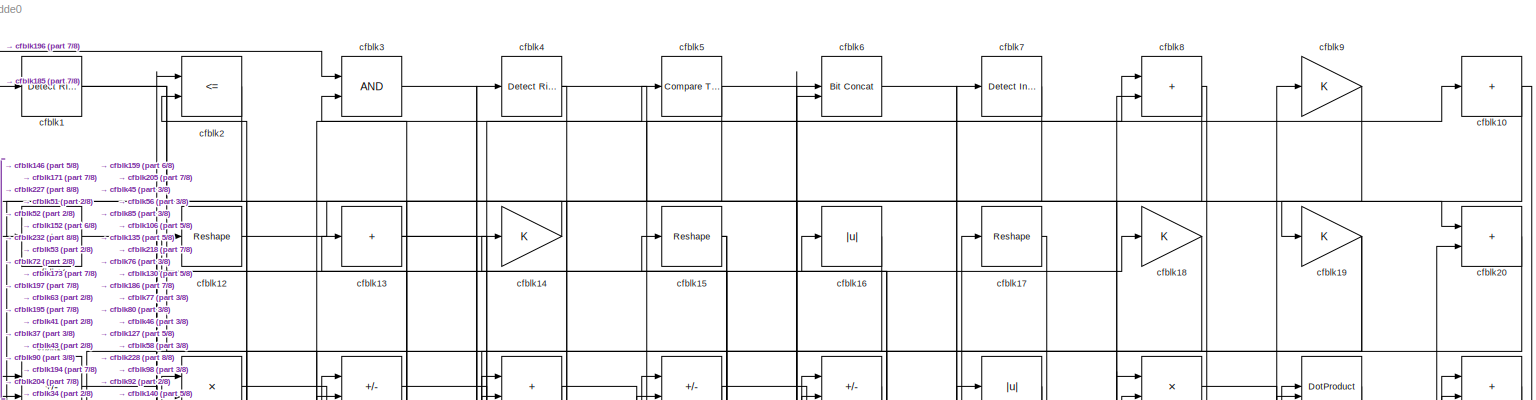
[diagram: root canvas - part 1/8, full width, top band]
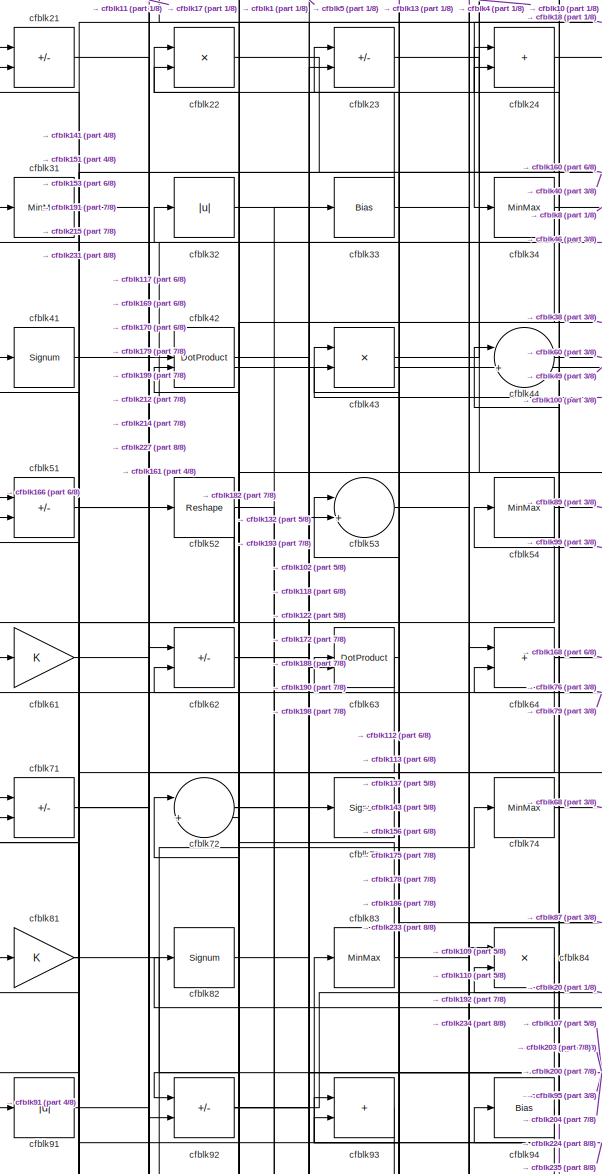
[diagram: root canvas - part 2/8, top left region]
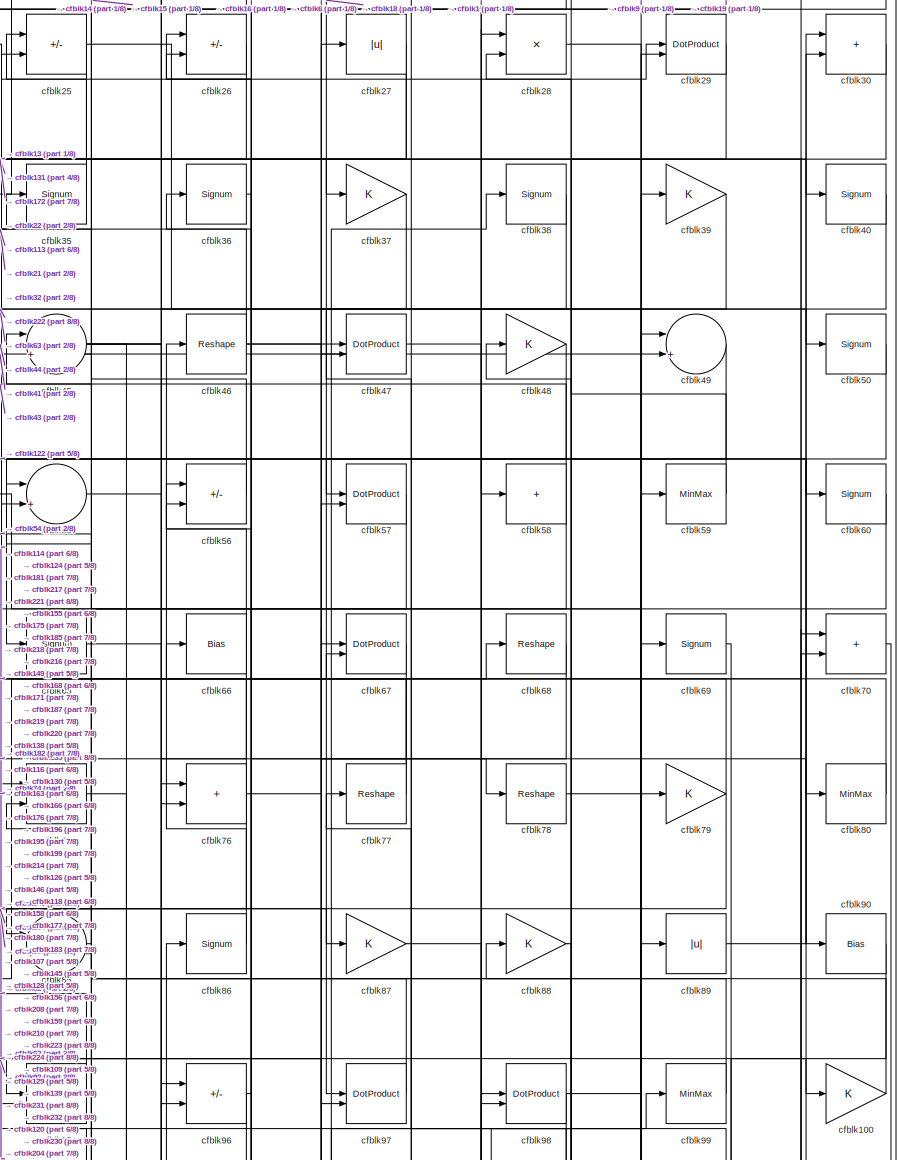
[diagram: root canvas - part 3/8, top right region]
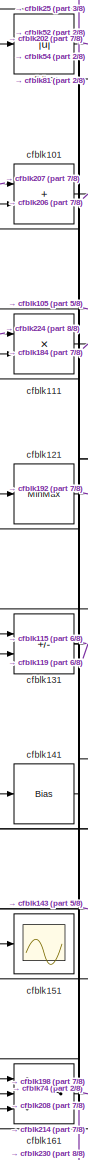
[diagram: root canvas - part 4/8, middle left region]
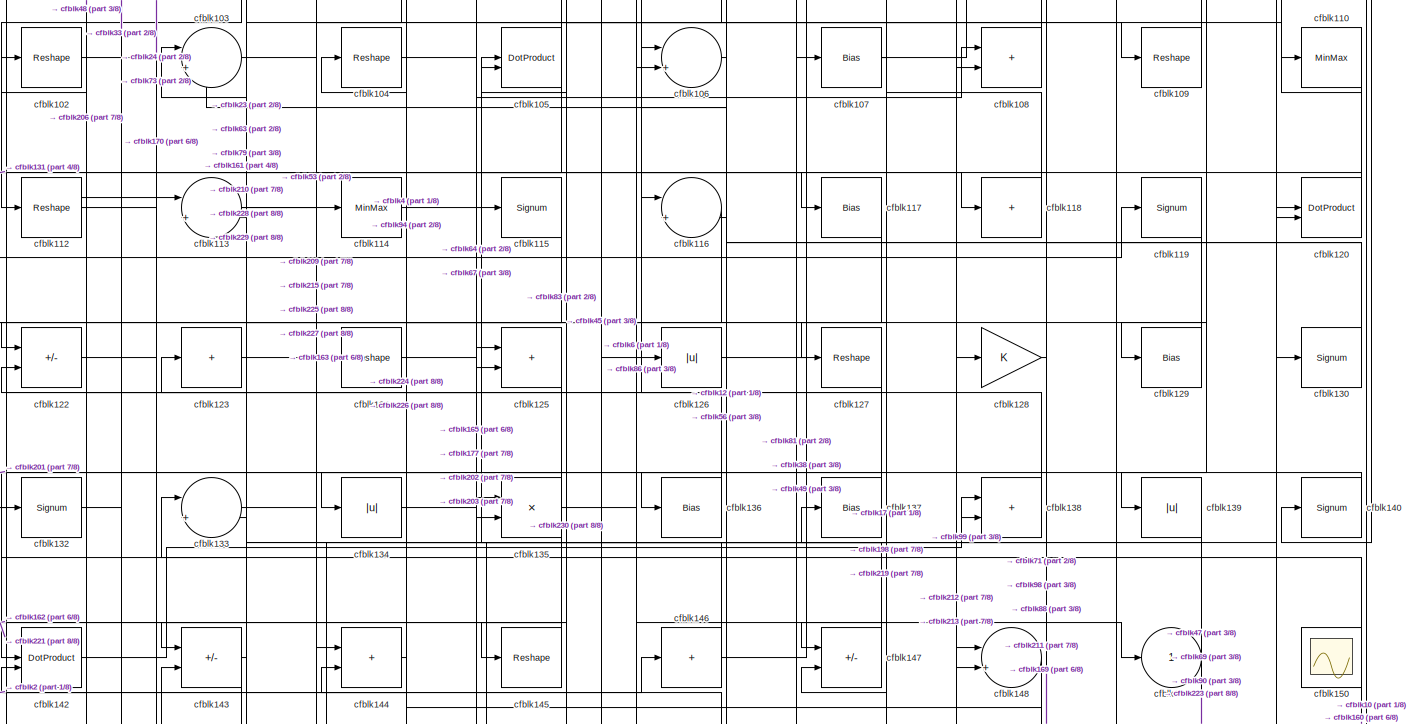
[diagram: root canvas - part 5/8, full width, middle band]
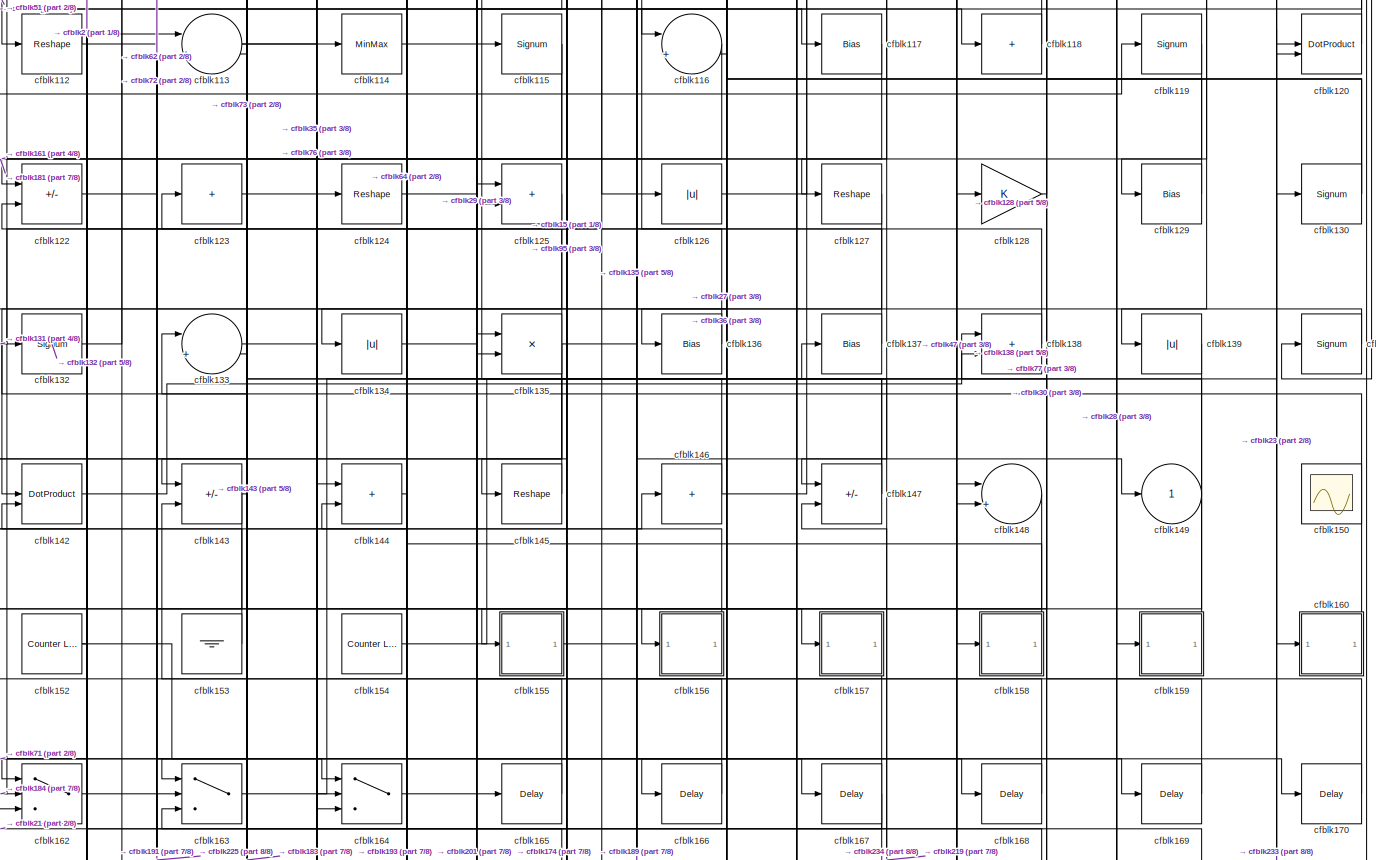
[diagram: root canvas - part 6/8, full width, middle band]
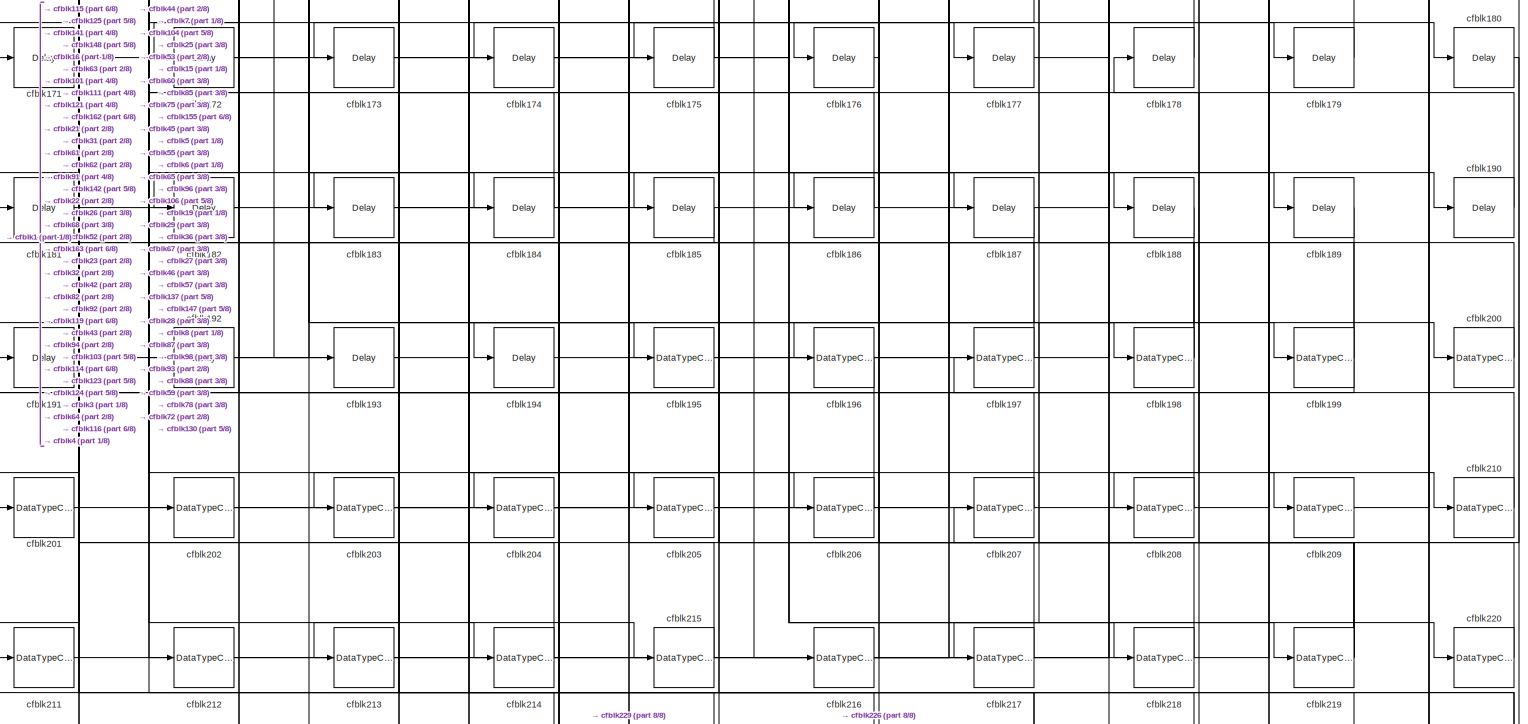
[diagram: root canvas - part 7/8, full width, bottom band]
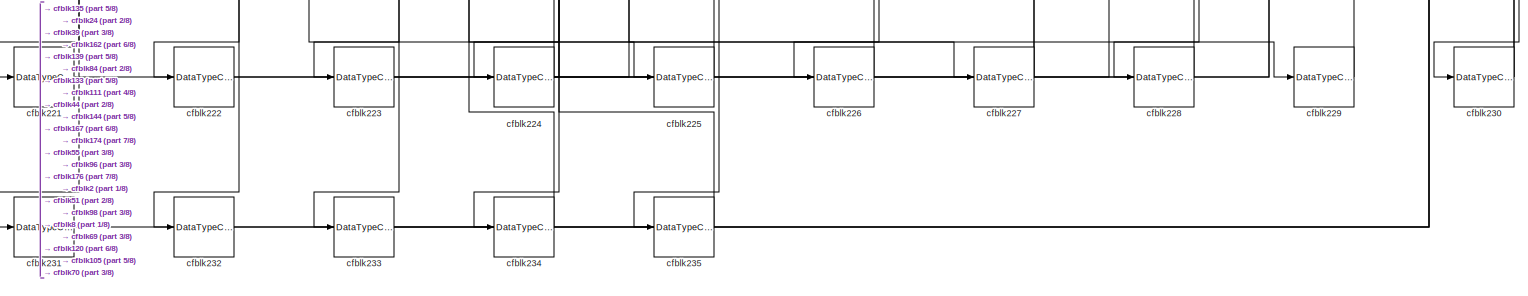
[diagram: root canvas - part 8/8, full width, bottom band]
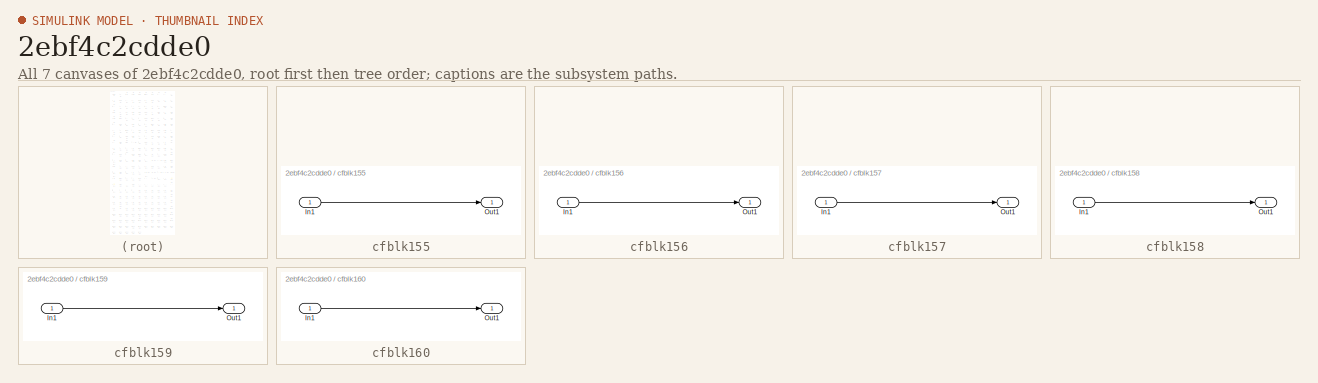
[diagram: thumbnail index - all 7 canvases of the model, root first then tree order]
MODEL slx_2ebf4c2cdde0
KIND model
CONFIG AbsTol = auto
CONFIG EnableMultiTasking = off
CONFIG FixedStep = auto
CONFIG MaxStep = auto
CONFIG MinStep = auto
CONFIG RelTol = 1e-3
CONFIG SampleTimeConstraint = Unconstrained
CONFIG SolverName = VariableStepAuto
CONFIG StartTime = 0.0
CONFIG StopTime = 10.0
BLOCK [Reference] cfblk1  REF=hdlsllib/Logic and Bit
Operations/Detect Rise
Positive
  SourceBlock = hdlsllib/Logic and Bit\nOperations/Detect Rise\nPositive
  SourceType = Detect Rise Positive
BLOCK [Sum] cfblk10
  IconShape = rectangular
  Inputs = +
BLOCK [Gain] cfblk100
BLOCK [Sum] cfblk101
  IconShape = rectangular
BLOCK [Reshape] cfblk102
BLOCK [Sum] cfblk103
  Inputs = |++
BLOCK [Reshape] cfblk104
BLOCK [DotProduct] cfblk105
  OutDataTypeStr = Inherit: Inherit via internal rule
BLOCK [Sum] cfblk106
  Inputs = |++
BLOCK [Bias] cfblk107
  Bias = 0.0
  SaturateOnIntegerOverflow = off
BLOCK [Sum] cfblk108
  IconShape = rectangular
BLOCK [Reshape] cfblk109
BLOCK [Sum] cfblk11
  IconShape = rectangular
  Inputs = +
BLOCK [MinMax] cfblk110
BLOCK [Product] cfblk111
  Inputs = */
  RndMeth = Zero
  SaturateOnIntegerOverflow = on
BLOCK [Reshape] cfblk112
BLOCK [Sum] cfblk113
  Inputs = |++
BLOCK [MinMax] cfblk114
BLOCK [Signum] cfblk115
BLOCK [Sum] cfblk116
  Inputs = |++
BLOCK [Bias] cfblk117
  Bias = 0.0
  SaturateOnIntegerOverflow = off
BLOCK [Sum] cfblk118
  IconShape = rectangular
  Inputs = +
BLOCK [Signum] cfblk119
BLOCK [Reshape] cfblk12
BLOCK [DotProduct] cfblk120
  OutDataTypeStr = Inherit: Inherit via internal rule
BLOCK [MinMax] cfblk121
BLOCK [Sum] cfblk122
  IconShape = rectangular
  Inputs = +-
BLOCK [Sum] cfblk123
  IconShape = rectangular
  Inputs = +
BLOCK [Reshape] cfblk124
BLOCK [Sum] cfblk125
  IconShape = rectangular
BLOCK [Abs] cfblk126
  SaturateOnIntegerOverflow = off
BLOCK [Reshape] cfblk127
BLOCK [Gain] cfblk128
BLOCK [Bias] cfblk129
  Bias = 0.0
  SaturateOnIntegerOverflow = off
BLOCK [Sum] cfblk13
  IconShape = rectangular
  Inputs = +
BLOCK [Signum] cfblk130
BLOCK [Sum] cfblk131
  IconShape = rectangular
  Inputs = +-
BLOCK [Signum] cfblk132
BLOCK [Sum] cfblk133
  Inputs = |++
BLOCK [Abs] cfblk134
  SaturateOnIntegerOverflow = off
BLOCK [Product] cfblk135
  Inputs = */
  RndMeth = Zero
  SaturateOnIntegerOverflow = on
BLOCK [Bias] cfblk136
  Bias = 0.0
  SaturateOnIntegerOverflow = off
BLOCK [Bias] cfblk137
  Bias = 0.0
  SaturateOnIntegerOverflow = off
BLOCK [Sum] cfblk138
  IconShape = rectangular
BLOCK [Abs] cfblk139
  SaturateOnIntegerOverflow = off
BLOCK [Gain] cfblk14
BLOCK [Signum] cfblk140
BLOCK [Bias] cfblk141
  Bias = 0.0
  SaturateOnIntegerOverflow = off
BLOCK [DotProduct] cfblk142
  OutDataTypeStr = Inherit: Inherit via internal rule
BLOCK [Sum] cfblk143
  IconShape = rectangular
  Inputs = +-
BLOCK [Sum] cfblk144
  IconShape = rectangular
BLOCK [Reshape] cfblk145
BLOCK [Sum] cfblk146
  IconShape = rectangular
  Inputs = +
BLOCK [Sum] cfblk147
  IconShape = rectangular
  Inputs = +-
BLOCK [Sum] cfblk148
  Inputs = |++
BLOCK [Outport] cfblk149
  VectorParamsAs1DForOutWhenUnconnected = off
BLOCK [Reshape] cfblk15
BLOCK [Scope] cfblk150
  Floating = on
  NumInputPorts = 1
  ScopeSpecificationString = Simulink.scopes.TimeScopeBlockCfg('CurrentConfiguration', extmgr.ConfigurationSet(extmgr.Configuration('Core','General UI',true,'FigureColor',[0.156862745098039 0.156862745098039 0.156862745098039]),extmgr.Configuration('Core','Source UI',true),extmgr.Configuration('Sources','WiredSimulink',true,'DataLoggingVariableName','ScopeData1','DataLoggingSaveFormat','StructureWithTime','DataLoggingLimitDat...<+2713ch>
BLOCK [Scope] cfblk151
  Floating = off
  NumInputPorts = 1
  ScopeSpecificationString = Simulink.scopes.TimeScopeBlockCfg('CurrentConfiguration', extmgr.ConfigurationSet(extmgr.Configuration('Core','General UI',true),extmgr.Configuration('Core','Source UI',true),extmgr.Configuration('Sources','WiredSimulink',true,'DataLoggingVariableName','ScopeData2','DataLoggingSaveFormat','Array','DataLoggingLimitDataPoints',true,'DataLoggingDecimation','1'),extmgr.Configuration('Visuals','Time Do...<+868ch>
BLOCK [Reference] cfblk152  REF=hdlsllib/Sources/Counter
Limited
  SourceBlock = hdlsllib/Sources/Counter\nLimited
  SourceType = Counter Limited
BLOCK [Ground] cfblk153
BLOCK [Reference] cfblk154  REF=hdlsllib/Sources/Counter
Limited
  SourceBlock = hdlsllib/Sources/Counter\nLimited
  SourceType = Counter Limited
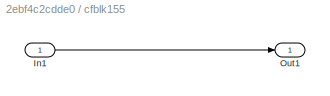
BLOCK [SubSystem] cfblk155
  LibrarySourceBlock = hdlsllib/Ports &\nSubsystems/Subsystem
BLOCK [Inport] cfblk155/In1
BLOCK [Outport] cfblk155/Out1
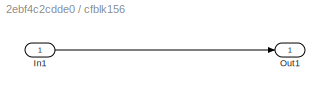
BLOCK [SubSystem] cfblk156
  LibrarySourceBlock = hdlsllib/Ports &\nSubsystems/Subsystem
BLOCK [Inport] cfblk156/In1
BLOCK [Outport] cfblk156/Out1
BLOCK [SubSystem] cfblk157
  LibrarySourceBlock = hdlsllib/Ports &\nSubsystems/Subsystem
BLOCK [Inport] cfblk157/In1
BLOCK [Outport] cfblk157/Out1
BLOCK [SubSystem] cfblk158
  LibrarySourceBlock = hdlsllib/Ports &\nSubsystems/Subsystem
BLOCK [Inport] cfblk158/In1
BLOCK [Outport] cfblk158/Out1
BLOCK [SubSystem] cfblk159
  LibrarySourceBlock = hdlsllib/Ports &\nSubsystems/Subsystem
BLOCK [Inport] cfblk159/In1
BLOCK [Outport] cfblk159/Out1
BLOCK [Abs] cfblk16
  SaturateOnIntegerOverflow = off
BLOCK [SubSystem] cfblk160
  LibrarySourceBlock = hdlsllib/Ports &\nSubsystems/Subsystem
BLOCK [Inport] cfblk160/In1
BLOCK [Outport] cfblk160/Out1
BLOCK [Switch] cfblk161
  InputSameDT = off
  SaturateOnIntegerOverflow = off
BLOCK [Switch] cfblk162
  InputSameDT = off
  SaturateOnIntegerOverflow = off
BLOCK [Switch] cfblk163
  InputSameDT = off
  SaturateOnIntegerOverflow = off
BLOCK [Switch] cfblk164
  InputSameDT = off
  SaturateOnIntegerOverflow = off
BLOCK [Delay] cfblk165
  InputPortMap = u0
  SampleTime = 1
BLOCK [Delay] cfblk166
  InputPortMap = u0
  SampleTime = 1
BLOCK [Delay] cfblk167
  InputPortMap = u0
  SampleTime = 1
BLOCK [Delay] cfblk168
  InputPortMap = u0
  SampleTime = 1
BLOCK [Delay] cfblk169
  InputPortMap = u0
  SampleTime = 1
BLOCK [Reshape] cfblk17
BLOCK [Delay] cfblk170
  InputPortMap = u0
  SampleTime = 1
BLOCK [Delay] cfblk171
  InputPortMap = u0
  SampleTime = 1
BLOCK [Delay] cfblk172
  InputPortMap = u0
  SampleTime = 1
BLOCK [Delay] cfblk173
  InputPortMap = u0
  SampleTime = 1
BLOCK [Delay] cfblk174
  InputPortMap = u0
  SampleTime = 1
BLOCK [Delay] cfblk175
  InputPortMap = u0
  SampleTime = 1
BLOCK [Delay] cfblk176
  InputPortMap = u0
  SampleTime = 1
BLOCK [Delay] cfblk177
  InputPortMap = u0
  SampleTime = 1
BLOCK [Delay] cfblk178
  InputPortMap = u0
  SampleTime = 1
BLOCK [Delay] cfblk179
  InputPortMap = u0
  SampleTime = 1
BLOCK [Gain] cfblk18
BLOCK [Delay] cfblk180
  InputPortMap = u0
  SampleTime = 1
BLOCK [Delay] cfblk181
  InputPortMap = u0
  SampleTime = 1
BLOCK [Delay] cfblk182
  InputPortMap = u0
  SampleTime = 1
BLOCK [Delay] cfblk183
  InputPortMap = u0
  SampleTime = 1
BLOCK [Delay] cfblk184
  InputPortMap = u0
  SampleTime = 1
BLOCK [Delay] cfblk185
  InputPortMap = u0
  SampleTime = 1
BLOCK [Delay] cfblk186
  InputPortMap = u0
  SampleTime = 1
BLOCK [Delay] cfblk187
  InputPortMap = u0
  SampleTime = 1
BLOCK [Delay] cfblk188
  InputPortMap = u0
  SampleTime = 1
BLOCK [Delay] cfblk189
  InputPortMap = u0
  SampleTime = 1
BLOCK [Gain] cfblk19
BLOCK [Delay] cfblk190
  InputPortMap = u0
  SampleTime = 1
BLOCK [Delay] cfblk191
  InputPortMap = u0
  SampleTime = 1
BLOCK [Delay] cfblk192
  InputPortMap = u0
  SampleTime = 1
BLOCK [Delay] cfblk193
  InputPortMap = u0
  SampleTime = 1
BLOCK [Delay] cfblk194
  InputPortMap = u0
  SampleTime = 1
BLOCK [DataTypeConversion] cfblk195
  OutDataTypeStr = uint8
  RndMeth = Floor
  SaturateOnIntegerOverflow = off
BLOCK [DataTypeConversion] cfblk196
  OutDataTypeStr = uint8
  RndMeth = Floor
  SaturateOnIntegerOverflow = off
BLOCK [DataTypeConversion] cfblk197
  OutDataTypeStr = uint8
  RndMeth = Floor
  SaturateOnIntegerOverflow = off
BLOCK [DataTypeConversion] cfblk198
  RndMeth = Floor
  SaturateOnIntegerOverflow = off
BLOCK [DataTypeConversion] cfblk199
  OutDataTypeStr = uint8
  RndMeth = Floor
  SaturateOnIntegerOverflow = off
BLOCK [RelationalOperator] cfblk2
  InputSameDT = off
  Operator = <=
  OutDataTypeStr = boolean
BLOCK [Sum] cfblk20
  IconShape = rectangular
BLOCK [DataTypeConversion] cfblk200
  OutDataTypeStr = uint8
  RndMeth = Floor
  SaturateOnIntegerOverflow = off
BLOCK [DataTypeConversion] cfblk201
  OutDataTypeStr = uint8
  RndMeth = Floor
  SaturateOnIntegerOverflow = off
BLOCK [DataTypeConversion] cfblk202
  OutDataTypeStr = uint8
  RndMeth = Floor
  SaturateOnIntegerOverflow = off
BLOCK [DataTypeConversion] cfblk203
  OutDataTypeStr = uint8
  RndMeth = Floor
  SaturateOnIntegerOverflow = off
BLOCK [DataTypeConversion] cfblk204
  RndMeth = Floor
  SaturateOnIntegerOverflow = off
BLOCK [DataTypeConversion] cfblk205
  OutDataTypeStr = uint8
  RndMeth = Floor
  SaturateOnIntegerOverflow = off
BLOCK [DataTypeConversion] cfblk206
  OutDataTypeStr = uint8
  RndMeth = Floor
  SaturateOnIntegerOverflow = off
BLOCK [DataTypeConversion] cfblk207
  OutDataTypeStr = uint8
  RndMeth = Floor
  SaturateOnIntegerOverflow = off
BLOCK [DataTypeConversion] cfblk208
  OutDataTypeStr = uint8
  RndMeth = Floor
  SaturateOnIntegerOverflow = off
BLOCK [DataTypeConversion] cfblk209
  OutDataTypeStr = uint8
  RndMeth = Floor
  SaturateOnIntegerOverflow = off
BLOCK [Sum] cfblk21
  IconShape = rectangular
  Inputs = +-
BLOCK [DataTypeConversion] cfblk210
  OutDataTypeStr = uint8
  RndMeth = Floor
  SaturateOnIntegerOverflow = off
BLOCK [DataTypeConversion] cfblk211
  OutDataTypeStr = uint8
  RndMeth = Floor
  SaturateOnIntegerOverflow = off
BLOCK [DataTypeConversion] cfblk212
  OutDataTypeStr = uint8
  RndMeth = Floor
  SaturateOnIntegerOverflow = off
BLOCK [DataTypeConversion] cfblk213
  OutDataTypeStr = uint8
  RndMeth = Floor
  SaturateOnIntegerOverflow = off
BLOCK [DataTypeConversion] cfblk214
  RndMeth = Floor
  SaturateOnIntegerOverflow = off
BLOCK [DataTypeConversion] cfblk215
  OutDataTypeStr = uint8
  RndMeth = Floor
  SaturateOnIntegerOverflow = off
BLOCK [DataTypeConversion] cfblk216
  RndMeth = Floor
  SaturateOnIntegerOverflow = off
BLOCK [DataTypeConversion] cfblk217
  OutDataTypeStr = uint8
  RndMeth = Floor
  SaturateOnIntegerOverflow = off
BLOCK [DataTypeConversion] cfblk218
  OutDataTypeStr = uint8
  RndMeth = Floor
  SaturateOnIntegerOverflow = off
BLOCK [DataTypeConversion] cfblk219
  RndMeth = Floor
  SaturateOnIntegerOverflow = off
BLOCK [Product] cfblk22
  Inputs = */
  RndMeth = Zero
  SaturateOnIntegerOverflow = on
BLOCK [DataTypeConversion] cfblk220
  OutDataTypeStr = uint8
  RndMeth = Floor
  SaturateOnIntegerOverflow = off
BLOCK [DataTypeConversion] cfblk221
  OutDataTypeStr = uint8
  RndMeth = Floor
  SaturateOnIntegerOverflow = off
BLOCK [DataTypeConversion] cfblk222
  OutDataTypeStr = uint8
  RndMeth = Floor
  SaturateOnIntegerOverflow = off
BLOCK [DataTypeConversion] cfblk223
  OutDataTypeStr = uint8
  RndMeth = Floor
  SaturateOnIntegerOverflow = off
BLOCK [DataTypeConversion] cfblk224
  RndMeth = Floor
  SaturateOnIntegerOverflow = off
BLOCK [DataTypeConversion] cfblk225
  OutDataTypeStr = uint8
  RndMeth = Floor
  SaturateOnIntegerOverflow = off
BLOCK [DataTypeConversion] cfblk226
  OutDataTypeStr = uint8
  RndMeth = Floor
  SaturateOnIntegerOverflow = off
BLOCK [DataTypeConversion] cfblk227
  RndMeth = Floor
  SaturateOnIntegerOverflow = off
BLOCK [DataTypeConversion] cfblk228
  OutDataTypeStr = uint8
  RndMeth = Floor
  SaturateOnIntegerOverflow = off
BLOCK [DataTypeConversion] cfblk229
  OutDataTypeStr = uint8
  RndMeth = Floor
  SaturateOnIntegerOverflow = off
BLOCK [Sum] cfblk23
  IconShape = rectangular
  Inputs = +-
BLOCK [DataTypeConversion] cfblk230
  RndMeth = Floor
  SaturateOnIntegerOverflow = off
BLOCK [DataTypeConversion] cfblk231
  OutDataTypeStr = uint8
  RndMeth = Floor
  SaturateOnIntegerOverflow = off
BLOCK [DataTypeConversion] cfblk232
  OutDataTypeStr = uint8
  RndMeth = Floor
  SaturateOnIntegerOverflow = off
BLOCK [DataTypeConversion] cfblk233
  OutDataTypeStr = uint8
  RndMeth = Floor
  SaturateOnIntegerOverflow = off
BLOCK [DataTypeConversion] cfblk234
  OutDataTypeStr = uint8
  RndMeth = Floor
  SaturateOnIntegerOverflow = off
BLOCK [DataTypeConversion] cfblk235
  OutDataTypeStr = uint8
  RndMeth = Floor
  SaturateOnIntegerOverflow = off
BLOCK [Sum] cfblk24
  IconShape = rectangular
BLOCK [Sum] cfblk25
  IconShape = rectangular
  Inputs = +-
BLOCK [Sum] cfblk26
  IconShape = rectangular
  Inputs = +-
BLOCK [Abs] cfblk27
  SaturateOnIntegerOverflow = off
BLOCK [Product] cfblk28
  Inputs = */
  RndMeth = Zero
  SaturateOnIntegerOverflow = on
BLOCK [DotProduct] cfblk29
  OutDataTypeStr = Inherit: Inherit via internal rule
BLOCK [Logic] cfblk3
  AllPortsSameDT = off
  OutDataTypeStr = boolean
BLOCK [Sum] cfblk30
  IconShape = rectangular
BLOCK [MinMax] cfblk31
BLOCK [Abs] cfblk32
  SaturateOnIntegerOverflow = off
BLOCK [Bias] cfblk33
  Bias = 0.0
  SaturateOnIntegerOverflow = off
BLOCK [MinMax] cfblk34
BLOCK [Signum] cfblk35
BLOCK [Signum] cfblk36
BLOCK [Gain] cfblk37
BLOCK [Signum] cfblk38
BLOCK [Gain] cfblk39
BLOCK [Reference] cfblk4  REF=hdlsllib/Logic and Bit
Operations/Detect Rise
Nonnegative
  SourceBlock = hdlsllib/Logic and Bit\nOperations/Detect Rise\nNonnegative
  SourceType = Detect Rise Nonnegative
BLOCK [Signum] cfblk40
BLOCK [Signum] cfblk41
BLOCK [DotProduct] cfblk42
  OutDataTypeStr = Inherit: Inherit via internal rule
BLOCK [Product] cfblk43
  Inputs = */
  RndMeth = Zero
  SaturateOnIntegerOverflow = on
BLOCK [Sum] cfblk44
  Inputs = |++
BLOCK [Sum] cfblk45
  Inputs = |++
BLOCK [Reshape] cfblk46
BLOCK [DotProduct] cfblk47
  OutDataTypeStr = Inherit: Inherit via internal rule
BLOCK [Gain] cfblk48
BLOCK [Sum] cfblk49
  Inputs = |++
BLOCK [Reference] cfblk5  REF=hdlsllib/Logic and Bit
Operations/Compare
To Constant
  SourceBlock = hdlsllib/Logic and Bit\nOperations/Compare\nTo Constant
  SourceType = Compare To Constant
BLOCK [Signum] cfblk50
BLOCK [Sum] cfblk51
  IconShape = rectangular
  Inputs = +-
BLOCK [Reshape] cfblk52
BLOCK [Sum] cfblk53
  Inputs = |++
BLOCK [MinMax] cfblk54
BLOCK [Sum] cfblk55
  Inputs = |++
BLOCK [Sum] cfblk56
  IconShape = rectangular
  Inputs = +-
BLOCK [DotProduct] cfblk57
  OutDataTypeStr = Inherit: Inherit via internal rule
BLOCK [Sum] cfblk58
  IconShape = rectangular
  Inputs = +
BLOCK [MinMax] cfblk59
BLOCK [Reference] cfblk6  REF=hdlsllib/Logic and Bit
Operations/Bit Concat
  SourceBlock = hdlsllib/Logic and Bit\nOperations/Bit Concat
  SourceType = Bit Concat
BLOCK [Signum] cfblk60
BLOCK [Gain] cfblk61
BLOCK [Sum] cfblk62
  IconShape = rectangular
  Inputs = +-
BLOCK [DotProduct] cfblk63
  OutDataTypeStr = Inherit: Inherit via internal rule
BLOCK [Sum] cfblk64
  IconShape = rectangular
BLOCK [Signum] cfblk65
BLOCK [Bias] cfblk66
  Bias = 0.0
  SaturateOnIntegerOverflow = off
BLOCK [DotProduct] cfblk67
  OutDataTypeStr = Inherit: Inherit via internal rule
BLOCK [Reshape] cfblk68
BLOCK [Signum] cfblk69
BLOCK [Reference] cfblk7  REF=simulink/Logic and Bit
Operations/Detect
Increase
  LibrarySourceBlock = hdlsllib/Logic and Bit\nOperations/Detect\nIncrease
  SourceBlock = simulink/Logic and Bit\nOperations/Detect\nIncrease
  SourceType = Detect Increase
BLOCK [Sum] cfblk70
  IconShape = rectangular
BLOCK [Sum] cfblk71
  IconShape = rectangular
  Inputs = +-
BLOCK [Sum] cfblk72
  Inputs = |++
BLOCK [Signum] cfblk73
BLOCK [MinMax] cfblk74
BLOCK [Sum] cfblk75
  IconShape = rectangular
  Inputs = +-
BLOCK [Sum] cfblk76
  IconShape = rectangular
BLOCK [Reshape] cfblk77
BLOCK [Reshape] cfblk78
BLOCK [Gain] cfblk79
BLOCK [Sum] cfblk8
  IconShape = rectangular
BLOCK [MinMax] cfblk80
BLOCK [Gain] cfblk81
BLOCK [Signum] cfblk82
BLOCK [MinMax] cfblk83
BLOCK [Product] cfblk84
  Inputs = */
  RndMeth = Zero
  SaturateOnIntegerOverflow = on
BLOCK [Sum] cfblk85
  Inputs = |++
BLOCK [Signum] cfblk86
BLOCK [Gain] cfblk87
BLOCK [Gain] cfblk88
BLOCK [Abs] cfblk89
  SaturateOnIntegerOverflow = off
BLOCK [Gain] cfblk9
BLOCK [Bias] cfblk90
  Bias = 0.0
  SaturateOnIntegerOverflow = off
BLOCK [Abs] cfblk91
  SaturateOnIntegerOverflow = off
BLOCK [Sum] cfblk92
  IconShape = rectangular
  Inputs = +-
BLOCK [Sum] cfblk93
  IconShape = rectangular
BLOCK [Bias] cfblk94
  Bias = 0.0
  SaturateOnIntegerOverflow = off
BLOCK [DotProduct] cfblk95
  OutDataTypeStr = Inherit: Inherit via internal rule
BLOCK [Sum] cfblk96
  IconShape = rectangular
  Inputs = +-
BLOCK [DotProduct] cfblk97
  OutDataTypeStr = Inherit: Inherit via internal rule
BLOCK [DotProduct] cfblk98
  OutDataTypeStr = Inherit: Inherit via internal rule
BLOCK [MinMax] cfblk99
LINE cfblk100:1 -> cfblk43:1
LINE cfblk101:1 -> cfblk206:1
LINE cfblk102:1 -> cfblk73:1
LINE cfblk103:1 -> cfblk215:1
LINE cfblk104:1 -> cfblk177:1
NET cfblk105:1 -> cfblk131:2, cfblk83:1
LINE cfblk106:1 -> cfblk136:1
NET cfblk107:1 -> cfblk147:1, cfblk99:1
LINE cfblk108:1 -> cfblk71:1
LINE cfblk109:1 -> cfblk47:1
NET cfblk10:1 -> cfblk140:1, cfblk19:1
LINE cfblk110:1 -> cfblk135:2
LINE cfblk111:1 -> cfblk184:1
NET cfblk112:1 -> cfblk113:1, cfblk164:3
NET cfblk113:1 -> cfblk167:1, cfblk35:1
LINE cfblk114:1 -> cfblk29:1
NET cfblk115:1 -> cfblk161:1, cfblk181:1
LINE cfblk116:1 -> cfblk174:1
LINE cfblk117:1 -> cfblk162:1
LINE cfblk118:1 -> cfblk77:1
LINE cfblk119:1 -> cfblk183:1
LINE cfblk11:1 -> cfblk52:1
LINE cfblk120:1 -> cfblk30:2
LINE cfblk121:1 -> cfblk192:1
LINE cfblk122:1 -> cfblk24:1
LINE cfblk123:1 -> cfblk209:1
LINE cfblk124:1 -> cfblk67:2
LINE cfblk125:1 -> cfblk201:1
LINE cfblk126:1 -> cfblk49:1
LINE cfblk127:1 -> cfblk142:1
LINE cfblk128:1 -> cfblk88:1
LINE cfblk129:1 -> cfblk48:1
LINE cfblk12:1 -> cfblk20:1
NET cfblk130:1 -> cfblk103:2, cfblk12:1, cfblk56:1
NET cfblk131:1 -> cfblk115:1, cfblk119:1
LINE cfblk132:1 -> cfblk33:1
LINE cfblk133:1 -> cfblk227:1
LINE cfblk134:1 -> cfblk108:1
NET cfblk135:1 -> cfblk102:1, cfblk162:3, cfblk221:1, cfblk6:2
LINE cfblk136:1 -> cfblk104:1
LINE cfblk137:1 -> cfblk63:1
LINE cfblk138:1 -> cfblk86:1
LINE cfblk139:1 -> cfblk223:1
NET cfblk13:1 -> cfblk37:1, cfblk90:1
LINE cfblk140:1 -> cfblk134:1
LINE cfblk141:1 -> cfblk81:1
LINE cfblk142:1 -> cfblk138:1
NET cfblk143:1 -> cfblk161:3, cfblk23:1
LINE cfblk144:1 -> cfblk224:1
LINE cfblk145:1 -> cfblk103:1
NET cfblk146:1 -> cfblk38:1, cfblk94:1
NET cfblk147:1 -> cfblk105:1, cfblk122:2
LINE cfblk148:1 -> cfblk211:1
LINE cfblk14:1 -> cfblk11:1
NET cfblk152:1 -> cfblk164:1, cfblk2:2
LINE cfblk153:1 -> cfblk71:2
LINE cfblk154:1 -> cfblk120:2
LINE cfblk155/In1:1 -> cfblk155/Out1:1
LINE cfblk155:1 -> cfblk189:1
LINE cfblk156/In1:1 -> cfblk156/Out1:1
LINE cfblk156:1 -> cfblk93:1
LINE cfblk157/In1:1 -> cfblk157/Out1:1
LINE cfblk157:1 -> cfblk21:1
LINE cfblk158/In1:1 -> cfblk158/Out1:1
LINE cfblk158:1 -> cfblk64:2
LINE cfblk159/In1:1 -> cfblk159/Out1:1
LINE cfblk159:1 -> cfblk15:1
NET cfblk15:1 -> cfblk205:1, cfblk45:2
LINE cfblk160/In1:1 -> cfblk160/Out1:1
LINE cfblk160:1 -> cfblk132:1
LINE cfblk161:1 -> cfblk74:1
LINE cfblk162:1 -> cfblk225:1
LINE cfblk163:1 -> cfblk128:1
LINE cfblk164:1 -> cfblk165:1
LINE cfblk165:1 -> cfblk135:1
LINE cfblk166:1 -> cfblk51:1
LINE cfblk167:1 -> cfblk234:1
LINE cfblk168:1 -> cfblk76:1
LINE cfblk169:1 -> cfblk138:2
LINE cfblk16:1 -> cfblk171:1
LINE cfblk170:1 -> cfblk143:2
LINE cfblk171:1 -> cfblk96:1
LINE cfblk172:1 -> cfblk23:2
LINE cfblk173:1 -> cfblk6:1
LINE cfblk174:1 -> cfblk229:1
LINE cfblk175:1 -> cfblk53:1
LINE cfblk176:1 -> cfblk226:1
LINE cfblk177:1 -> cfblk98:2
LINE cfblk178:1 -> cfblk93:2
LINE cfblk179:1 -> cfblk72:1
LINE cfblk17:1 -> cfblk127:1
LINE cfblk180:1 -> cfblk207:1
LINE cfblk181:1 -> cfblk25:2
LINE cfblk182:1 -> cfblk22:2
LINE cfblk183:1 -> cfblk28:1
LINE cfblk184:1 -> cfblk162:2
LINE cfblk185:1 -> cfblk1:1
LINE cfblk186:1 -> cfblk43:2
LINE cfblk187:1 -> cfblk213:1
LINE cfblk188:1 -> cfblk217:1
LINE cfblk189:1 -> cfblk197:1
LINE cfblk18:1 -> cfblk34:1
LINE cfblk190:1 -> cfblk62:1
LINE cfblk191:1 -> cfblk163:2
LINE cfblk192:1 -> cfblk64:1
LINE cfblk193:1 -> cfblk163:3
LINE cfblk194:1 -> cfblk8:2
LINE cfblk195:1 -> cfblk27:1
LINE cfblk196:1 -> cfblk3:1
LINE cfblk197:1 -> cfblk3:2
NET cfblk198:1 -> cfblk121:1, cfblk137:1
LINE cfblk199:1 -> cfblk42:1
NET cfblk19:1 -> cfblk186:1, cfblk85:2
NET cfblk1:1 -> cfblk53:2, cfblk58:1
LINE cfblk200:1 -> cfblk42:2
LINE cfblk201:1 -> cfblk114:1
LINE cfblk202:1 -> cfblk125:1
LINE cfblk203:1 -> cfblk125:2
NET cfblk204:1 -> cfblk29:2, cfblk44:1
LINE cfblk205:1 -> cfblk7:1
LINE cfblk206:1 -> cfblk142:2
LINE cfblk207:1 -> cfblk101:1
LINE cfblk208:1 -> cfblk101:2
LINE cfblk209:1 -> cfblk130:1
LINE cfblk20:1 -> cfblk72:2
LINE cfblk210:1 -> cfblk123:1
LINE cfblk211:1 -> cfblk124:1
LINE cfblk212:1 -> cfblk148:1
LINE cfblk213:1 -> cfblk148:2
NET cfblk214:1 -> cfblk141:1, cfblk67:1
LINE cfblk215:1 -> cfblk31:1
NET cfblk216:1 -> cfblk36:1, cfblk57:2, cfblk59:1
LINE cfblk217:1 -> cfblk75:1
LINE cfblk218:1 -> cfblk75:2
NET cfblk219:1 -> cfblk106:1, cfblk116:2, cfblk147:2, cfblk178:1
LINE cfblk21:1 -> cfblk212:1
LINE cfblk220:1 -> cfblk55:1
LINE cfblk221:1 -> cfblk55:2
LINE cfblk222:1 -> cfblk98:1
LINE cfblk223:1 -> cfblk39:1
NET cfblk224:1 -> cfblk111:1, cfblk44:2, cfblk69:1
LINE cfblk225:1 -> cfblk144:1
LINE cfblk226:1 -> cfblk144:2
NET cfblk227:1 -> cfblk2:1, cfblk51:2
LINE cfblk228:1 -> cfblk133:1
LINE cfblk229:1 -> cfblk133:2
LINE cfblk22:1 -> cfblk40:1
NET cfblk230:1 -> cfblk105:2, cfblk111:2
LINE cfblk231:1 -> cfblk70:1
LINE cfblk232:1 -> cfblk70:2
LINE cfblk233:1 -> cfblk120:1
LINE cfblk234:1 -> cfblk84:1
LINE cfblk235:1 -> cfblk84:2
LINE cfblk23:1 -> cfblk160:1
NET cfblk24:1 -> cfblk100:1, cfblk231:1
NET cfblk25:1 -> cfblk131:1, cfblk79:1
LINE cfblk26:1 -> cfblk172:1
NET cfblk27:1 -> cfblk163:1, cfblk166:1
LINE cfblk28:1 -> cfblk159:1
LINE cfblk29:1 -> cfblk176:1
LINE cfblk2:1 -> cfblk146:1
LINE cfblk30:1 -> cfblk156:1
LINE cfblk31:1 -> cfblk214:1
LINE cfblk32:1 -> cfblk188:1
NET cfblk33:1 -> cfblk109:1, cfblk22:1
NET cfblk34:1 -> cfblk8:1, cfblk92:1
LINE cfblk35:1 -> cfblk25:1
LINE cfblk36:1 -> cfblk116:1
LINE cfblk37:1 -> cfblk57:1
LINE cfblk38:1 -> cfblk63:2
LINE cfblk39:1 -> cfblk222:1
LINE cfblk3:1 -> cfblk195:1
LINE cfblk40:1 -> cfblk47:2
NET cfblk41:1 -> cfblk49:2, cfblk4:1
LINE cfblk42:1 -> cfblk198:1
LINE cfblk43:1 -> cfblk10:1
LINE cfblk44:1 -> cfblk60:1
NET cfblk45:1 -> cfblk126:1, cfblk149:1, cfblk220:1, cfblk50:1
NET cfblk46:1 -> cfblk18:1, cfblk199:1, cfblk21:2
LINE cfblk47:1 -> cfblk158:1
LINE cfblk48:1 -> cfblk122:1
LINE cfblk49:1 -> cfblk65:1
NET cfblk4:1 -> cfblk106:2, cfblk194:1
LINE cfblk50:1 -> cfblk97:1
NET cfblk51:1 -> cfblk117:1, cfblk17:1
NET cfblk52:1 -> cfblk161:2, cfblk193:1, cfblk91:1
LINE cfblk53:1 -> cfblk110:1
NET cfblk54:1 -> cfblk151:1, cfblk89:1
LINE cfblk55:1 -> cfblk219:1
LINE cfblk56:1 -> cfblk14:1
LINE cfblk57:1 -> cfblk85:1
NET cfblk58:1 -> cfblk45:1, cfblk95:2
LINE cfblk59:1 -> cfblk28:2
NET cfblk5:1 -> cfblk173:1, cfblk218:1
LINE cfblk60:1 -> cfblk175:1
LINE cfblk61:1 -> cfblk179:1
NET cfblk62:1 -> cfblk157:1, cfblk97:2
NET cfblk63:1 -> cfblk13:1, cfblk191:1
NET cfblk64:1 -> cfblk108:2, cfblk168:1, cfblk92:2
LINE cfblk65:1 -> cfblk187:1
NET cfblk66:1 -> cfblk56:2, cfblk96:2
LINE cfblk67:1 -> cfblk196:1
LINE cfblk68:1 -> cfblk182:1
LINE cfblk69:1 -> cfblk139:1
LINE cfblk6:1 -> cfblk80:1
LINE cfblk70:1 -> cfblk230:1
NET cfblk71:1 -> cfblk169:1, cfblk170:1
NET cfblk72:1 -> cfblk118:1, cfblk5:1
LINE cfblk73:1 -> cfblk113:2
LINE cfblk74:1 -> cfblk68:1
LINE cfblk75:1 -> cfblk216:1
NET cfblk76:1 -> cfblk164:2, cfblk62:2, cfblk78:1
NET cfblk77:1 -> cfblk16:1, cfblk26:1
LINE cfblk78:1 -> cfblk210:1
NET cfblk79:1 -> cfblk143:1, cfblk24:2
LINE cfblk7:1 -> cfblk204:1
LINE cfblk80:1 -> cfblk46:1
NET cfblk81:1 -> cfblk107:1, cfblk41:1
LINE cfblk82:1 -> cfblk190:1
NET cfblk83:1 -> cfblk61:1, cfblk87:1
LINE cfblk84:1 -> cfblk233:1
LINE cfblk85:1 -> cfblk185:1
LINE cfblk86:1 -> cfblk66:1
LINE cfblk87:1 -> cfblk180:1
LINE cfblk88:1 -> cfblk208:1
LINE cfblk89:1 -> cfblk30:1
NET cfblk8:1 -> cfblk228:1, cfblk232:1
LINE cfblk90:1 -> cfblk129:1
LINE cfblk91:1 -> cfblk202:1
NET cfblk92:1 -> cfblk200:1, cfblk20:2, cfblk95:1
LINE cfblk93:1 -> cfblk112:1
LINE cfblk94:1 -> cfblk203:1
NET cfblk95:1 -> cfblk155:1, cfblk82:1
NET cfblk96:1 -> cfblk235:1, cfblk26:2
LINE cfblk97:1 -> cfblk32:1
NET cfblk98:1 -> cfblk145:1, cfblk9:1
LINE cfblk99:1 -> cfblk54:1
LINE cfblk9:1 -> cfblk76:2
note: NET lines group one-source signal fan-out (src -> all destinations, sorted); 1:1 wires keep LINE
